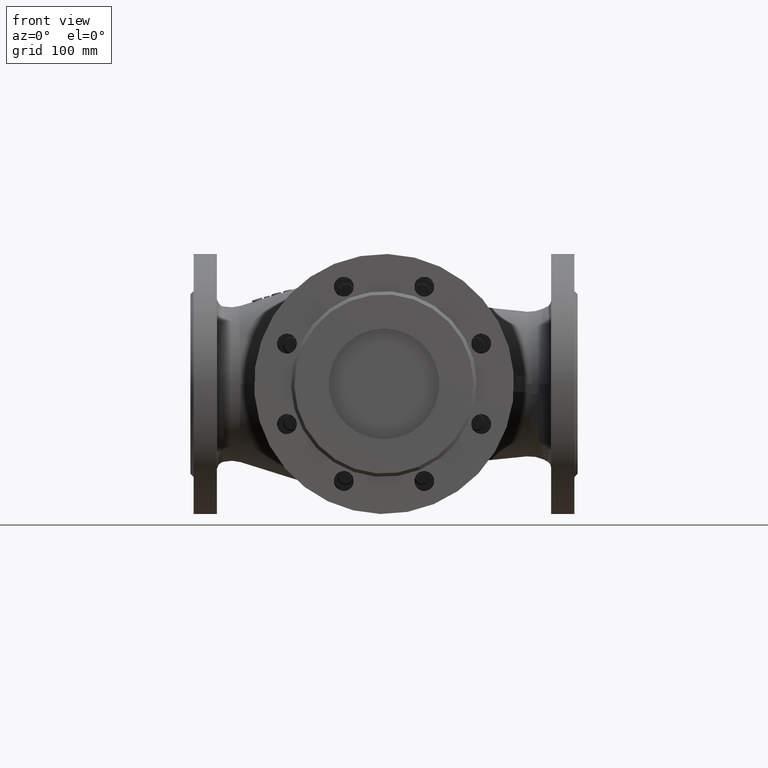
[diagram: clean part render]
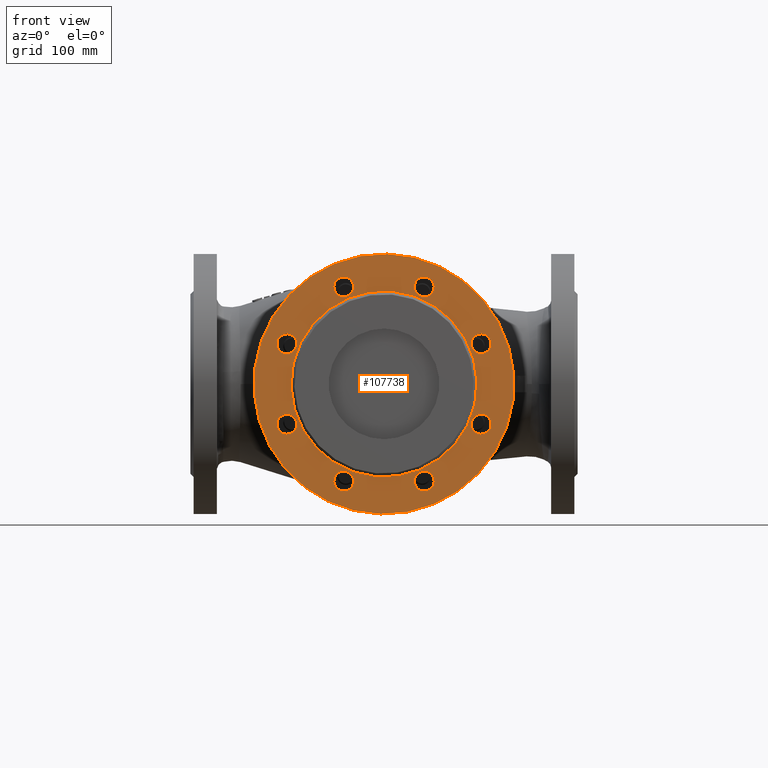
[diagram: same view with one face highlighted and labeled with its STEP entity id]
A machine part, front view. The second image highlights one B-rep face of the part: STEP entity #107738.
In plain terms, the highlighted planar face has unit normal (-0, 1, 0).
Its self-contained STEP definition (entity closure, byte-faithful):
#1739 = EDGE_CURVE ( 'NONE', #9736, #85867, #90174, .T. ) ;
#2883 = VERTEX_POINT ( 'NONE', #10475 ) ;
#3619 = CARTESIAN_POINT ( 'NONE',  ( 84.32440469728617000, -212.0000000000000300, 44.66984186728556200 ) ) ;
#3854 = EDGE_CURVE ( 'NONE', #46283, #87199, #59866, .T. ) ;
#4427 = ORIENTED_EDGE ( 'NONE', *, *, #78818, .F. ) ;
#4609 = ORIENTED_EDGE ( 'NONE', *, *, #163453, .F. ) ;
#4688 = VERTEX_POINT ( 'NONE', #11429 ) ;
#4722 = CARTESIAN_POINT ( 'NONE',  ( 2.125168815987060800E-014, -212.0000000000000300, -2.441494702710503000E-014 ) ) ;
#7235 = CARTESIAN_POINT ( 'NONE',  ( -87.76855558857286600, -212.0000000000000300, 36.35492607468194800 ) ) ;
#7305 = EDGE_CURVE ( 'NONE', #10395, #22324, #159273, .T. ) ;
#8146 = CARTESIAN_POINT ( 'NONE',  ( -87.76855558857175800, -212.0000000000000300, -36.35492607468464900 ) ) ;
#8299 = CARTESIAN_POINT ( 'NONE',  ( 36.35492607468494000, -212.0000000000000300, -87.76855558857170100 ) ) ;
#8463 = CIRCLE ( 'NONE', #129283, 9.000000000000040900 ) ;
#9112 = DIRECTION ( 'NONE',  ( 0.3826834323650866200, 0.0000000000000000000, 0.9238795325112879600 ) ) ;
#9736 = VERTEX_POINT ( 'NONE', #52684 ) ;
#10395 = VERTEX_POINT ( 'NONE', #79206 ) ;
#10475 = CARTESIAN_POINT ( 'NONE',  ( 91.21270647985885200, -212.0000000000000300, -44.66984186728356600 ) ) ;
#11208 = AXIS2_PLACEMENT_3D ( 'NONE', #64854, #161378, #78724 ) ;
#11429 = CARTESIAN_POINT ( 'NONE',  ( 39.79907696596886500, -212.0000000000000300, 79.45363979597091500 ) ) ;
#12639 = VERTEX_POINT ( 'NONE', #88691 ) ;
#12904 = CARTESIAN_POINT ( 'NONE',  ( -36.35492607468229000, -212.0000000000000300, -87.76855558857278100 ) ) ;
#16148 = ORIENTED_EDGE ( 'NONE', *, *, #1739, .F. ) ;
#17677 = DIRECTION ( 'NONE',  ( 8.817190284068855300E-017, -1.000000000000000000, -1.677873999336674600E-016 ) ) ;
#18582 = DIRECTION ( 'NONE',  ( -0.3826834323651010000, 0.0000000000000000000, 0.9238795325112820800 ) ) ;
#20301 = CIRCLE ( 'NONE', #73895, 9.000000000000039100 ) ;
#21105 = DIRECTION ( 'NONE',  ( -0.3826834323651012700, 0.0000000000000000000, 0.9238795325112818500 ) ) ;
#22024 = DIRECTION ( 'NONE',  ( -0.9238795325112896300, 0.0000000000000000000, 0.3826834323650827300 ) ) ;
#22184 = DIRECTION ( 'NONE',  ( -0.3826834323650807900, 0.0000000000000000000, -0.9238795325112905100 ) ) ;
#22324 = VERTEX_POINT ( 'NONE', #137450 ) ;
#23104 = DIRECTION ( 'NONE',  ( 8.817190284068855300E-017, -1.000000000000000000, -1.677873999336674600E-016 ) ) ;
#23292 = ORIENTED_EDGE ( 'NONE', *, *, #29249, .F. ) ;
#23307 = FACE_BOUND ( 'NONE', #33095, .T. ) ;
#24649 = CIRCLE ( 'NONE', #110907, 9.000000000000040900 ) ;
#25228 = AXIS2_PLACEMENT_3D ( 'NONE', #38091, #134608, #51968 ) ;
#26169 = ORIENTED_EDGE ( 'NONE', *, *, #75730, .F. ) ;
#26477 = ORIENTED_EDGE ( 'NONE', *, *, #102397, .F. ) ;
#26765 = DIRECTION ( 'NONE',  ( -0.9238795325112833000, 0.0000000000000000000, -0.3826834323650981600 ) ) ;
#27499 = PLANE ( 'NONE',  #93654 ) ;
#29249 = EDGE_CURVE ( 'NONE', #4688, #164400, #20301, .T. ) ;
#29455 = EDGE_CURVE ( 'NONE', #30743, #2883, #24649, .T. ) ;
#29523 = EDGE_LOOP ( 'NONE', ( #32491, #177006 ) ) ;
#30743 = VERTEX_POINT ( 'NONE', #121980 ) ;
#32491 = ORIENTED_EDGE ( 'NONE', *, *, #88109, .F. ) ;
#32649 = ORIENTED_EDGE ( 'NONE', *, *, #77830, .F. ) ;
#33095 = EDGE_LOOP ( 'NONE', ( #156666, #84075 ) ) ;
#33890 = CARTESIAN_POINT ( 'NONE',  ( 36.35492607468294300, -212.0000000000000300, 87.76855558857249700 ) ) ;
#34780 = EDGE_CURVE ( 'NONE', #58586, #99272, #112895, .T. ) ;
#34995 = DIRECTION ( 'NONE',  ( -8.817190284068855300E-017, 1.000000000000000000, 1.677873999336674600E-016 ) ) ;
#35781 = AXIS2_PLACEMENT_3D ( 'NONE', #8146, #104653, #22024 ) ;
#36267 = FACE_BOUND ( 'NONE', #133728, .T. ) ;
#36316 = CARTESIAN_POINT ( 'NONE',  ( -87.76855558857286600, -212.0000000000000300, 36.35492607468194800 ) ) ;
#38091 = CARTESIAN_POINT ( 'NONE',  ( 87.76855558857209900, -212.0000000000000300, 36.35492607468399500 ) ) ;
#41353 = AXIS2_PLACEMENT_3D ( 'NONE', #8299, #104810, #22184 ) ;
#46283 = VERTEX_POINT ( 'NONE', #102135 ) ;
#46747 = CARTESIAN_POINT ( 'NONE',  ( -91.21270647985878100, -212.0000000000000300, 44.66984186728352300 ) ) ;
#50209 = DIRECTION ( 'NONE',  ( -0.3826834323651012700, 0.0000000000000000000, 0.9238795325112818500 ) ) ;
#50244 = DIRECTION ( 'NONE',  ( 0.9238795325112858500, 0.0000000000000000000, 0.3826834323650921100 ) ) ;
#51636 = EDGE_CURVE ( 'NONE', #135323, #69211, #151191, .T. ) ;
#51968 = DIRECTION ( 'NONE',  ( 0.9238795325112867400, 0.0000000000000000000, -0.3826834323650898400 ) ) ;
#52272 = CARTESIAN_POINT ( 'NONE',  ( -87.76855558857175800, -212.0000000000000300, -36.35492607468464900 ) ) ;
#52544 = CIRCLE ( 'NONE', #167138, 9.000000000000040900 ) ;
#52684 = CARTESIAN_POINT ( 'NONE',  ( 44.96530330289939300, -212.0000000000000000, -108.5558450700756600 ) ) ;
#54539 = EDGE_CURVE ( 'NONE', #76110, #170668, #71142, .T. ) ;
#55251 = DIRECTION ( 'NONE',  ( -5.992308108740218000E-017, 1.000000000000000000, 9.958871133582568000E-017 ) ) ;
#56014 = ORIENTED_EDGE ( 'NONE', *, *, #106121, .F. ) ;
#58586 = VERTEX_POINT ( 'NONE', #123634 ) ;
#59866 = CIRCLE ( 'NONE', #110608, 83.99999999999998600 ) ;
#59947 = FACE_OUTER_BOUND ( 'NONE', #174922, .T. ) ;
#62512 = CARTESIAN_POINT ( 'NONE',  ( -36.35492607468229000, -212.0000000000000300, -87.76855558857278100 ) ) ;
#63272 = CARTESIAN_POINT ( 'NONE',  ( 91.21270647985801400, -212.0000000000000300, 28.04001028208243100 ) ) ;
#63615 = ORIENTED_EDGE ( 'NONE', *, *, #51636, .F. ) ;
#64854 = CARTESIAN_POINT ( 'NONE',  ( 36.35492607468294300, -212.0000000000000300, 87.76855558857249700 ) ) ;
#65514 = EDGE_LOOP ( 'NONE', ( #77480, #98944 ) ) ;
#66107 = DIRECTION ( 'NONE',  ( -0.9238795325112896300, 0.0000000000000000000, 0.3826834323650827300 ) ) ;
#66654 = CARTESIAN_POINT ( 'NONE',  ( 2.125168815987060800E-014, -212.0000000000000300, -2.441494702710503000E-014 ) ) ;
#66944 = CARTESIAN_POINT ( 'NONE',  ( 32.14540831866851500, -212.0000000000000000, -77.60588073094773200 ) ) ;
#67569 = CIRCLE ( 'NONE', #163709, 9.000000000000040900 ) ;
#67768 = CARTESIAN_POINT ( 'NONE',  ( 87.76855558857209900, -212.0000000000000300, 36.35492607468399500 ) ) ;
#67771 = AXIS2_PLACEMENT_3D ( 'NONE', #174396, #91751, #9112 ) ;
#69095 = ORIENTED_EDGE ( 'NONE', *, *, #162406, .F. ) ;
#69211 = VERTEX_POINT ( 'NONE', #46747 ) ;
#71142 = CIRCLE ( 'NONE', #157866, 9.000000000000040900 ) ;
#73724 = ORIENTED_EDGE ( 'NONE', *, *, #167692, .F. ) ;
#73895 = AXIS2_PLACEMENT_3D ( 'NONE', #33890, #130412, #50244 ) ;
#74404 = CARTESIAN_POINT ( 'NONE',  ( 36.35492607468494000, -212.0000000000000300, -87.76855558857170100 ) ) ;
#75730 = EDGE_CURVE ( 'NONE', #12639, #176440, #52544, .T. ) ;
#76110 = VERTEX_POINT ( 'NONE', #108937 ) ;
#76320 = ORIENTED_EDGE ( 'NONE', *, *, #155705, .F. ) ;
#76400 = DIRECTION ( 'NONE',  ( -0.9238795325112833000, 0.0000000000000000000, -0.3826834323650981600 ) ) ;
#77480 = ORIENTED_EDGE ( 'NONE', *, *, #77841, .F. ) ;
#77830 = EDGE_CURVE ( 'NONE', #168764, #115149, #140978, .T. ) ;
#77841 = EDGE_CURVE ( 'NONE', #170668, #76110, #67569, .T. ) ;
#78313 = CIRCLE ( 'NONE', #67771, 9.000000000000040900 ) ;
#78724 = DIRECTION ( 'NONE',  ( 0.9238795325112858500, 0.0000000000000000000, 0.3826834323650921100 ) ) ;
#78818 = EDGE_CURVE ( 'NONE', #22324, #10395, #78313, .T. ) ;
#79206 = CARTESIAN_POINT ( 'NONE',  ( -39.79907696597021500, -212.0000000000000300, 96.08347138117346700 ) ) ;
#81346 = CARTESIAN_POINT ( 'NONE',  ( 2.125168815987060800E-014, -212.0000000000000300, -2.441494702710503000E-014 ) ) ;
#81636 = DIRECTION ( 'NONE',  ( 0.9238795325112867400, 0.0000000000000000000, -0.3826834323650898400 ) ) ;
#82093 = AXIS2_PLACEMENT_3D ( 'NONE', #74404, #170913, #88258 ) ;
#83816 = EDGE_LOOP ( 'NONE', ( #63615, #73724 ) ) ;
#84075 = ORIENTED_EDGE ( 'NONE', *, *, #91523, .T. ) ;
#85867 = VERTEX_POINT ( 'NONE', #144995 ) ;
#87199 = VERTEX_POINT ( 'NONE', #66944 ) ;
#88109 = EDGE_CURVE ( 'NONE', #99272, #58586, #147080, .T. ) ;
#88258 = DIRECTION ( 'NONE',  ( -0.3826834323650807900, 0.0000000000000000000, -0.9238795325112905100 ) ) ;
#88691 = CARTESIAN_POINT ( 'NONE',  ( -91.21270647985768700, -212.0000000000000300, -28.04001028208308500 ) ) ;
#90174 = CIRCLE ( 'NONE', #114016, 117.5000000000000000 ) ;
#91523 = EDGE_CURVE ( 'NONE', #87199, #46283, #127473, .T. ) ;
#91751 = DIRECTION ( 'NONE',  ( 8.817190284068855300E-017, -1.000000000000000000, -1.677873999336674600E-016 ) ) ;
#93654 = AXIS2_PLACEMENT_3D ( 'NONE', #110145, #55251, #151779 ) ;
#94425 = DIRECTION ( 'NONE',  ( -0.3826834323651010000, 0.0000000000000000000, 0.9238795325112820800 ) ) ;
#94462 = AXIS2_PLACEMENT_3D ( 'NONE', #132707, #157472, #132928 ) ;
#94663 = EDGE_LOOP ( 'NONE', ( #69095, #134035 ) ) ;
#94918 = ORIENTED_EDGE ( 'NONE', *, *, #7305, .F. ) ;
#96690 = FACE_BOUND ( 'NONE', #94663, .T. ) ;
#98944 = ORIENTED_EDGE ( 'NONE', *, *, #54539, .F. ) ;
#99272 = VERTEX_POINT ( 'NONE', #177479 ) ;
#100312 = CARTESIAN_POINT ( 'NONE',  ( 87.76855558857292300, -212.0000000000000300, -36.35492607468199100 ) ) ;
#100989 = FACE_BOUND ( 'NONE', #83816, .T. ) ;
#101219 = DIRECTION ( 'NONE',  ( -8.817190284068855300E-017, 1.000000000000000000, 1.677873999336674600E-016 ) ) ;
#101303 = DIRECTION ( 'NONE',  ( -0.3826834323651010000, 0.0000000000000000000, 0.9238795325112821900 ) ) ;
#102135 = CARTESIAN_POINT ( 'NONE',  ( -32.14540831866845100, -212.0000000000000600, 77.60588073094764600 ) ) ;
#102397 = EDGE_CURVE ( 'NONE', #176440, #12639, #137868, .T. ) ;
#102619 = AXIS2_PLACEMENT_3D ( 'NONE', #100312, #17677, #114171 ) ;
#103664 = CIRCLE ( 'NONE', #102619, 9.000000000000040900 ) ;
#103740 = DIRECTION ( 'NONE',  ( 8.817190284068855300E-017, -1.000000000000000000, -1.677873999336674600E-016 ) ) ;
#104653 = DIRECTION ( 'NONE',  ( 8.817190284068855300E-017, -1.000000000000000000, -1.677873999336674600E-016 ) ) ;
#104810 = DIRECTION ( 'NONE',  ( 8.817190284068855300E-017, -1.000000000000000000, -1.677873999336674600E-016 ) ) ;
#105722 = CARTESIAN_POINT ( 'NONE',  ( 87.76855558857292300, -212.0000000000000300, -36.35492607468199100 ) ) ;
#106121 = EDGE_CURVE ( 'NONE', #85867, #9736, #122657, .T. ) ;
#107738 = ADVANCED_FACE ( 'NONE', ( #174412, #137712, #142007, #100989, #36267, #170046, #133390, #96690, #59947, #23307 ), #27499, .F. ) ;
#108479 = AXIS2_PLACEMENT_3D ( 'NONE', #117648, #34995, #131512 ) ;
#108937 = CARTESIAN_POINT ( 'NONE',  ( -39.79907696596821900, -212.0000000000000300, -79.45363979597121300 ) ) ;
#109396 = DIRECTION ( 'NONE',  ( 8.817190284068855300E-017, -1.000000000000000000, -1.677873999336674600E-016 ) ) ;
#110145 = CARTESIAN_POINT ( 'NONE',  ( 77.60588073094774600, -212.0000000000000300, 32.14540831866848000 ) ) ;
#110608 = AXIS2_PLACEMENT_3D ( 'NONE', #81346, #173511, #101303 ) ;
#110907 = AXIS2_PLACEMENT_3D ( 'NONE', #105722, #23104, #119599 ) ;
#112895 = CIRCLE ( 'NONE', #82093, 9.000000000000032000 ) ;
#114016 = AXIS2_PLACEMENT_3D ( 'NONE', #66654, #141019, #94425 ) ;
#114171 = DIRECTION ( 'NONE',  ( 0.3826834323651012700, 0.0000000000000000000, -0.9238795325112818500 ) ) ;
#115149 = VERTEX_POINT ( 'NONE', #63272 ) ;
#117648 = CARTESIAN_POINT ( 'NONE',  ( 2.125168815987060800E-014, -212.0000000000000300, -2.441494702710503000E-014 ) ) ;
#119599 = DIRECTION ( 'NONE',  ( 0.3826834323651012700, 0.0000000000000000000, -0.9238795325112818500 ) ) ;
#121980 = CARTESIAN_POINT ( 'NONE',  ( 84.32440469728698000, -212.0000000000000300, -28.04001028208042700 ) ) ;
#122657 = CIRCLE ( 'NONE', #124847, 117.5000000000000000 ) ;
#123634 = CARTESIAN_POINT ( 'NONE',  ( 32.91077518339902500, -212.0000000000000300, -79.45363979597013300 ) ) ;
#124342 = AXIS2_PLACEMENT_3D ( 'NONE', #7235, #103740, #21105 ) ;
#124847 = AXIS2_PLACEMENT_3D ( 'NONE', #4722, #101219, #18582 ) ;
#127473 = CIRCLE ( 'NONE', #108479, 83.99999999999998600 ) ;
#129283 = AXIS2_PLACEMENT_3D ( 'NONE', #36316, #132833, #50209 ) ;
#130412 = DIRECTION ( 'NONE',  ( 8.817190284068855300E-017, -1.000000000000000000, -1.677873999336674600E-016 ) ) ;
#131512 = DIRECTION ( 'NONE',  ( -0.3826834323651010000, 0.0000000000000000000, 0.9238795325112821900 ) ) ;
#132707 = CARTESIAN_POINT ( 'NONE',  ( -36.35492607468428600, -212.0000000000000300, 87.76855558857190000 ) ) ;
#132833 = DIRECTION ( 'NONE',  ( 8.817190284068855300E-017, -1.000000000000000000, -1.677873999336674600E-016 ) ) ;
#132928 = DIRECTION ( 'NONE',  ( 0.3826834323650866200, 0.0000000000000000000, 0.9238795325112879600 ) ) ;
#133390 = FACE_BOUND ( 'NONE', #29523, .T. ) ;
#133728 = EDGE_LOOP ( 'NONE', ( #26477, #26169 ) ) ;
#134035 = ORIENTED_EDGE ( 'NONE', *, *, #29455, .F. ) ;
#134608 = DIRECTION ( 'NONE',  ( 8.817190284068855300E-017, -1.000000000000000000, -1.677873999336674600E-016 ) ) ;
#135323 = VERTEX_POINT ( 'NONE', #161441 ) ;
#135965 = AXIS2_PLACEMENT_3D ( 'NONE', #67768, #164321, #81636 ) ;
#137450 = CARTESIAN_POINT ( 'NONE',  ( -32.91077518339837800, -212.0000000000000300, 79.45363979597031800 ) ) ;
#137712 = FACE_BOUND ( 'NONE', #168512, .T. ) ;
#137868 = CIRCLE ( 'NONE', #35781, 9.000000000000040900 ) ;
#140527 = CARTESIAN_POINT ( 'NONE',  ( 32.91077518339702100, -212.0000000000000300, 96.08347138117406400 ) ) ;
#140978 = CIRCLE ( 'NONE', #135965, 9.000000000000037300 ) ;
#141019 = DIRECTION ( 'NONE',  ( -8.817190284068855300E-017, 1.000000000000000000, 1.677873999336674600E-016 ) ) ;
#142007 = FACE_BOUND ( 'NONE', #153298, .T. ) ;
#144995 = CARTESIAN_POINT ( 'NONE',  ( -44.96530330289934300, -212.0000000000000300, 108.5558450700756200 ) ) ;
#146228 = EDGE_LOOP ( 'NONE', ( #4609, #32649 ) ) ;
#147080 = CIRCLE ( 'NONE', #41353, 9.000000000000032000 ) ;
#147153 = CIRCLE ( 'NONE', #11208, 9.000000000000039100 ) ;
#148804 = DIRECTION ( 'NONE',  ( 8.817190284068855300E-017, -1.000000000000000000, -1.677873999336674600E-016 ) ) ;
#151191 = CIRCLE ( 'NONE', #124342, 9.000000000000040900 ) ;
#151779 = DIRECTION ( 'NONE',  ( -0.3826834323651009400, -1.149395424207629700E-016, 0.9238795325112820800 ) ) ;
#153298 = EDGE_LOOP ( 'NONE', ( #4427, #94918 ) ) ;
#155705 = EDGE_CURVE ( 'NONE', #164400, #4688, #147153, .T. ) ;
#156666 = ORIENTED_EDGE ( 'NONE', *, *, #3854, .T. ) ;
#157472 = DIRECTION ( 'NONE',  ( 8.817190284068855300E-017, -1.000000000000000000, -1.677873999336674600E-016 ) ) ;
#157492 = CARTESIAN_POINT ( 'NONE',  ( -84.32440469728582900, -212.0000000000000300, -44.66984186728621600 ) ) ;
#157866 = AXIS2_PLACEMENT_3D ( 'NONE', #62512, #159060, #76400 ) ;
#159060 = DIRECTION ( 'NONE',  ( 8.817190284068855300E-017, -1.000000000000000000, -1.677873999336674600E-016 ) ) ;
#159273 = CIRCLE ( 'NONE', #94462, 9.000000000000040900 ) ;
#160824 = CARTESIAN_POINT ( 'NONE',  ( -32.91077518339637500, -212.0000000000000300, -96.08347138117436300 ) ) ;
#161378 = DIRECTION ( 'NONE',  ( 8.817190284068855300E-017, -1.000000000000000000, -1.677873999336674600E-016 ) ) ;
#161441 = CARTESIAN_POINT ( 'NONE',  ( -84.32440469728692300, -212.0000000000000300, 28.04001028208038400 ) ) ;
#162406 = EDGE_CURVE ( 'NONE', #2883, #30743, #103664, .T. ) ;
#163453 = EDGE_CURVE ( 'NONE', #115149, #168764, #164102, .T. ) ;
#163709 = AXIS2_PLACEMENT_3D ( 'NONE', #12904, #109396, #26765 ) ;
#164102 = CIRCLE ( 'NONE', #25228, 9.000000000000037300 ) ;
#164321 = DIRECTION ( 'NONE',  ( 8.817190284068855300E-017, -1.000000000000000000, -1.677873999336674600E-016 ) ) ;
#164400 = VERTEX_POINT ( 'NONE', #140527 ) ;
#167138 = AXIS2_PLACEMENT_3D ( 'NONE', #52272, #148804, #66107 ) ;
#167692 = EDGE_CURVE ( 'NONE', #69211, #135323, #8463, .T. ) ;
#168512 = EDGE_LOOP ( 'NONE', ( #23292, #76320 ) ) ;
#168764 = VERTEX_POINT ( 'NONE', #3619 ) ;
#170046 = FACE_BOUND ( 'NONE', #65514, .T. ) ;
#170668 = VERTEX_POINT ( 'NONE', #160824 ) ;
#170913 = DIRECTION ( 'NONE',  ( 8.817190284068855300E-017, -1.000000000000000000, -1.677873999336674600E-016 ) ) ;
#173511 = DIRECTION ( 'NONE',  ( -8.817190284068855300E-017, 1.000000000000000000, 1.677873999336674600E-016 ) ) ;
#174396 = CARTESIAN_POINT ( 'NONE',  ( -36.35492607468428600, -212.0000000000000300, 87.76855558857190000 ) ) ;
#174412 = FACE_BOUND ( 'NONE', #146228, .T. ) ;
#174922 = EDGE_LOOP ( 'NONE', ( #56014, #16148 ) ) ;
#176440 = VERTEX_POINT ( 'NONE', #157492 ) ;
#177006 = ORIENTED_EDGE ( 'NONE', *, *, #34780, .F. ) ;
#177479 = CARTESIAN_POINT ( 'NONE',  ( 39.79907696597086900, -212.0000000000000300, -96.08347138117328300 ) ) ;